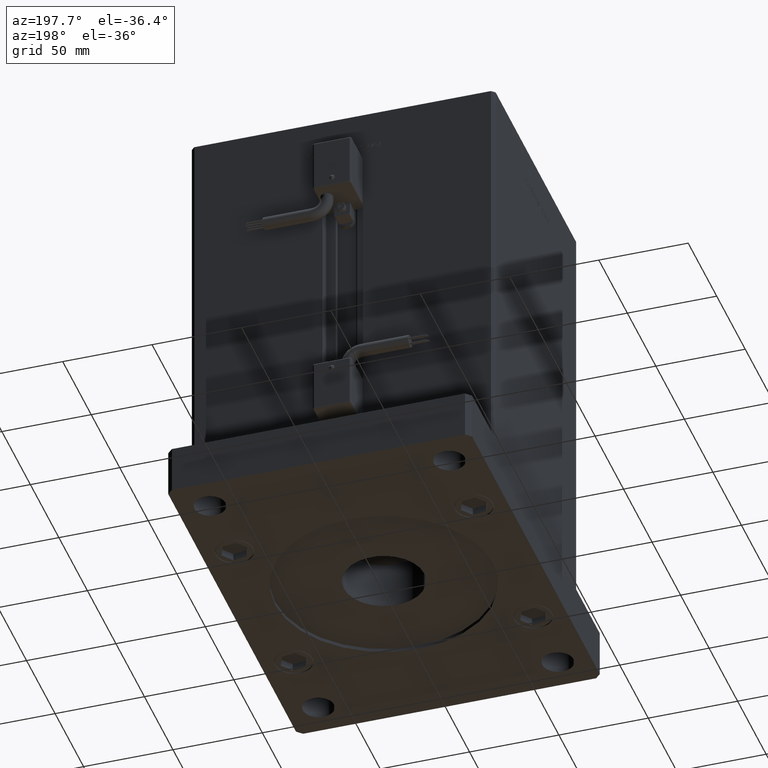
[diagram: clean part render]
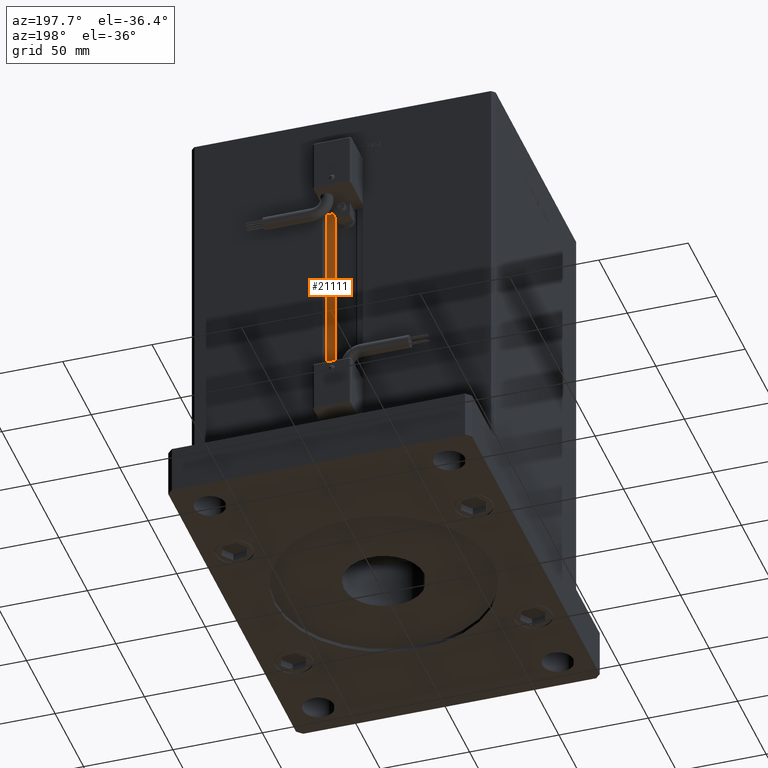
[diagram: same view with one face highlighted and labeled with its STEP entity id]
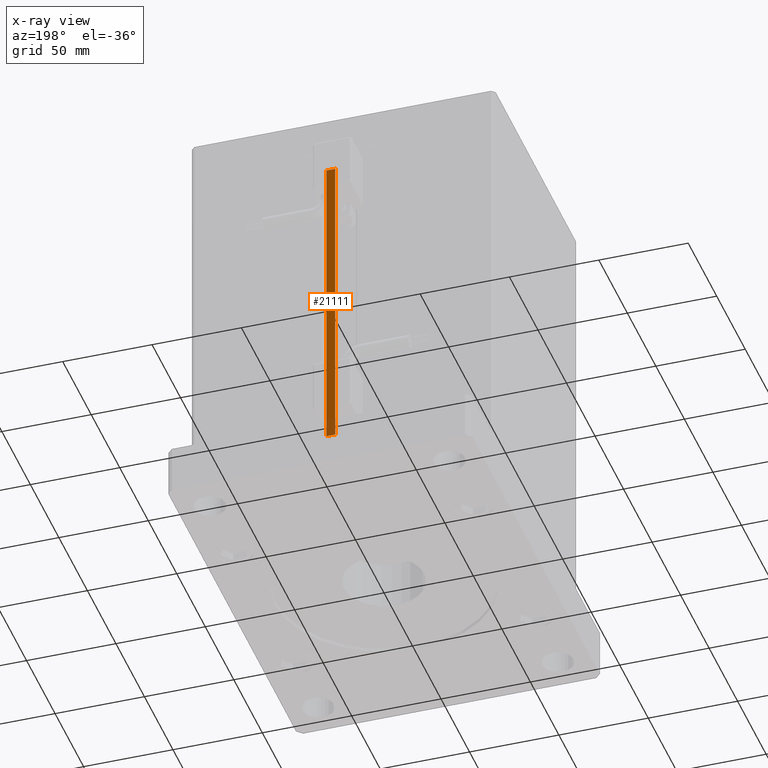
[diagram: x-ray of the same camera — body ghosted, the highlighted face saturated]
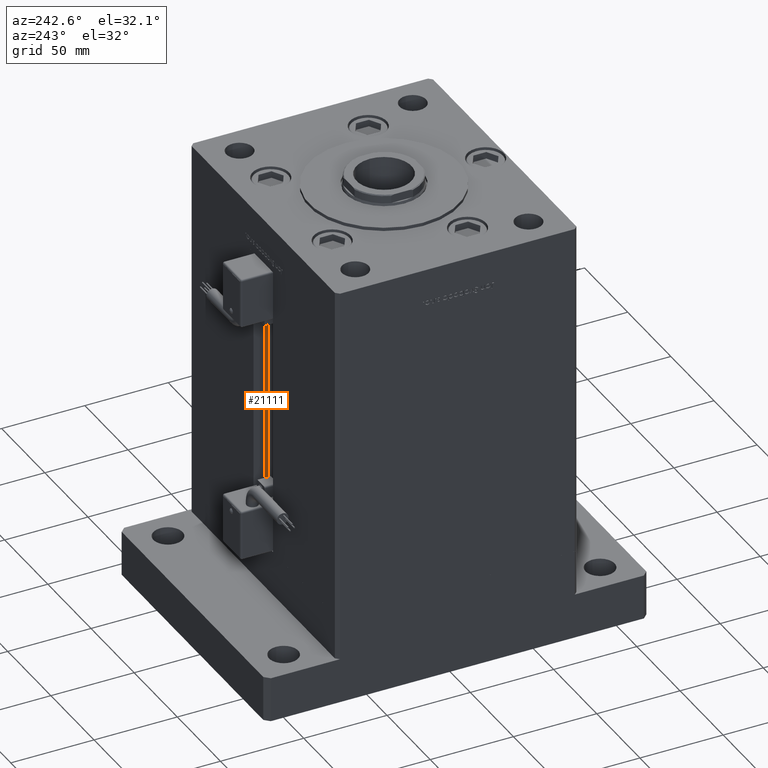
[diagram: same view with one face highlighted and labeled with its STEP entity id]
A machine part, auxiliary view. The second image highlights one B-rep face of the part: STEP entity #21111.
The next image is the same camera in x-ray: the body ghosted, the highlighted face saturated — about 6% of this face is hidden behind the body in this view.
A second angle (auxiliary view) of the same face is appended — the face is thin or edge-on in the first view.
In plain terms, the highlighted planar face has unit normal (-0, -1, 0).
Its self-contained STEP definition (entity closure, byte-faithful):
#4204 = CARTESIAN_POINT ( 'NONE',  ( 1.807764464439226360E-13, 66.00000000000000000, 176.0000000000000000 ) ) ;
#4406 = DIRECTION ( 'NONE',  ( -0.000000000000000000, -0.000000000000000000, 1.000000000000000000 ) ) ;
#4453 = ORIENTED_EDGE ( 'NONE', *, *, #19192, .F. ) ;
#4772 = DIRECTION ( 'NONE',  ( -0.000000000000000000, -0.000000000000000000, 1.000000000000000000 ) ) ;
#5232 = AXIS2_PLACEMENT_3D ( 'NONE', #17936, #18220, #9407 ) ;
#8846 = PLANE ( 'NONE',  #5232 ) ;
#9292 = EDGE_CURVE ( 'NONE', #50161, #12807, #48131, .T. ) ;
#9407 = DIRECTION ( 'NONE',  ( 1.000000000000000000, -2.739037067332161330E-15, 0.000000000000000000 ) ) ;
#12807 = VERTEX_POINT ( 'NONE', #31161 ) ;
#13569 = VECTOR ( 'NONE', #43846, 1000.000000000000000 ) ;
#15907 = VECTOR ( 'NONE', #4772, 1000.000000000000000 ) ;
#17936 = CARTESIAN_POINT ( 'NONE',  ( 6.183333333334001480, 65.99999999999998579, 0.000000000000000000 ) ) ;
#18220 = DIRECTION ( 'NONE',  ( -2.739037067332161330E-15, -1.000000000000000000, 0.000000000000000000 ) ) ;
#19192 = EDGE_CURVE ( 'NONE', #28366, #50161, #43490, .T. ) ;
#21111 = ADVANCED_FACE ( 'NONE', ( #31348 ), #8846, .F. ) ;
#22357 = ORIENTED_EDGE ( 'NONE', *, *, #47846, .T. ) ;
#22848 = CARTESIAN_POINT ( 'NONE',  ( 6.183333333334001480, 65.99999999999998579, 0.000000000000000000 ) ) ;
#23996 = LINE ( 'NONE', #24263, #44724 ) ;
#24263 = CARTESIAN_POINT ( 'NONE',  ( 6.183333333334001480, 65.99999999999998579, 0.000000000000000000 ) ) ;
#26435 = LINE ( 'NONE', #56389, #15907 ) ;
#28366 = VERTEX_POINT ( 'NONE', #28778 ) ;
#28778 = CARTESIAN_POINT ( 'NONE',  ( 11.25000000000000178, 65.99999999999997158, 0.000000000000000000 ) ) ;
#29167 = EDGE_LOOP ( 'NONE', ( #4453, #35103, #22357, #41018 ) ) ;
#31161 = CARTESIAN_POINT ( 'NONE',  ( 6.183333333334002369, 65.99999999999998579, 176.0000000000000000 ) ) ;
#31348 = FACE_OUTER_BOUND ( 'NONE', #29167, .T. ) ;
#33169 = VERTEX_POINT ( 'NONE', #22848 ) ;
#34355 = CARTESIAN_POINT ( 'NONE',  ( 11.25000000000000178, 65.99999999999997158, 0.000000000000000000 ) ) ;
#35103 = ORIENTED_EDGE ( 'NONE', *, *, #38894, .F. ) ;
#38894 = EDGE_CURVE ( 'NONE', #33169, #28366, #23996, .T. ) ;
#41018 = ORIENTED_EDGE ( 'NONE', *, *, #9292, .F. ) ;
#41415 = DIRECTION ( 'NONE',  ( 1.000000000000000000, -2.739037067332160936E-15, 0.000000000000000000 ) ) ;
#41564 = VECTOR ( 'NONE', #4406, 1000.000000000000000 ) ;
#43490 = LINE ( 'NONE', #34355, #41564 ) ;
#43846 = DIRECTION ( 'NONE',  ( -1.000000000000000000, 2.739037067332161330E-15, 0.000000000000000000 ) ) ;
#44724 = VECTOR ( 'NONE', #41415, 1000.000000000000000 ) ;
#47846 = EDGE_CURVE ( 'NONE', #33169, #12807, #26435, .T. ) ;
#48131 = LINE ( 'NONE', #4204, #13569 ) ;
#48710 = CARTESIAN_POINT ( 'NONE',  ( 11.25000000000000178, 65.99999999999997158, 176.0000000000000000 ) ) ;
#50161 = VERTEX_POINT ( 'NONE', #48710 ) ;
#56389 = CARTESIAN_POINT ( 'NONE',  ( 6.183333333334001480, 65.99999999999998579, 0.000000000000000000 ) ) ;